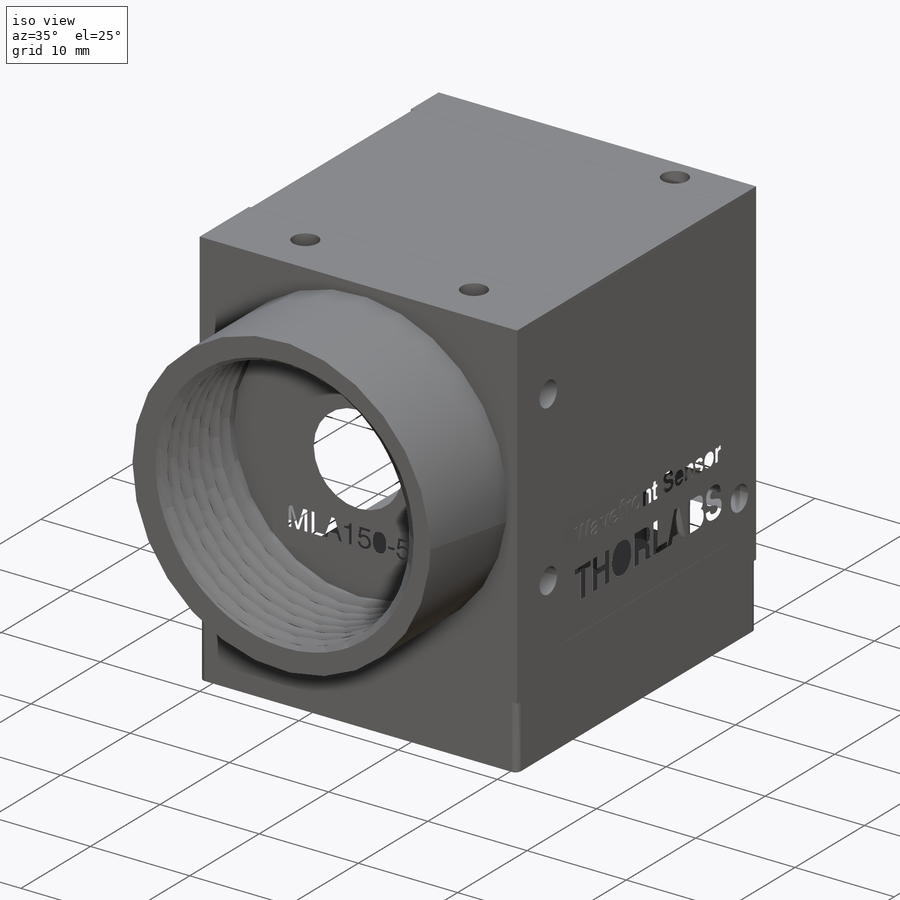
[diagram: iso view]
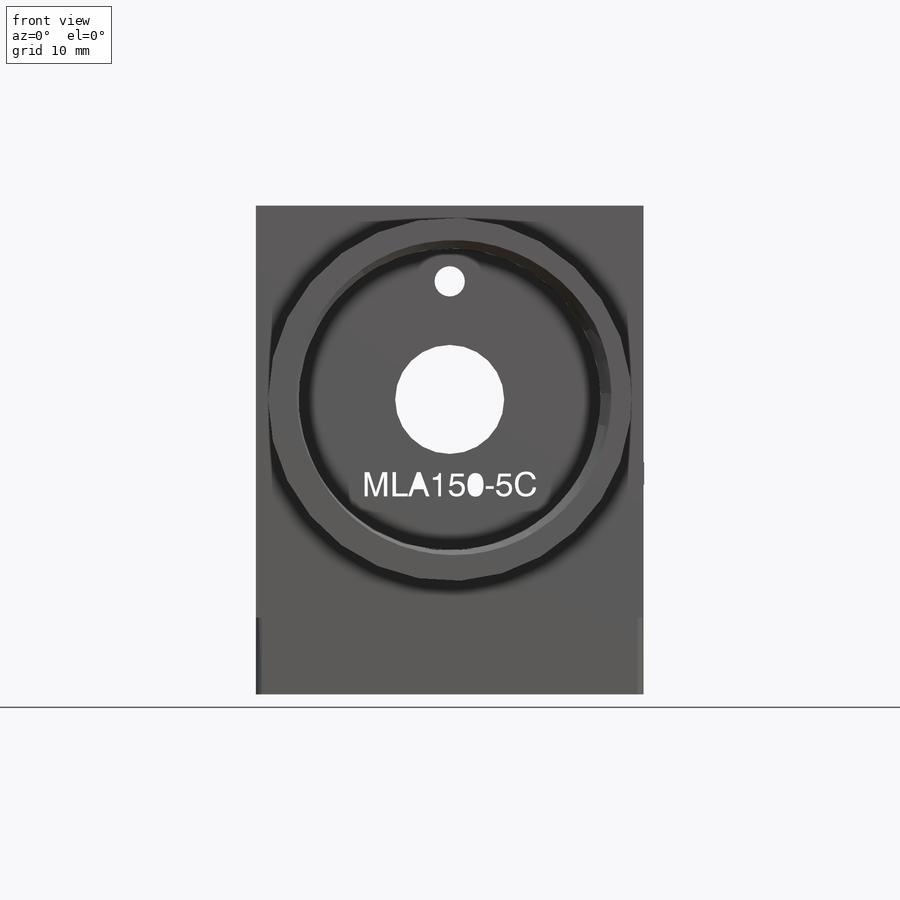
[diagram: front view]
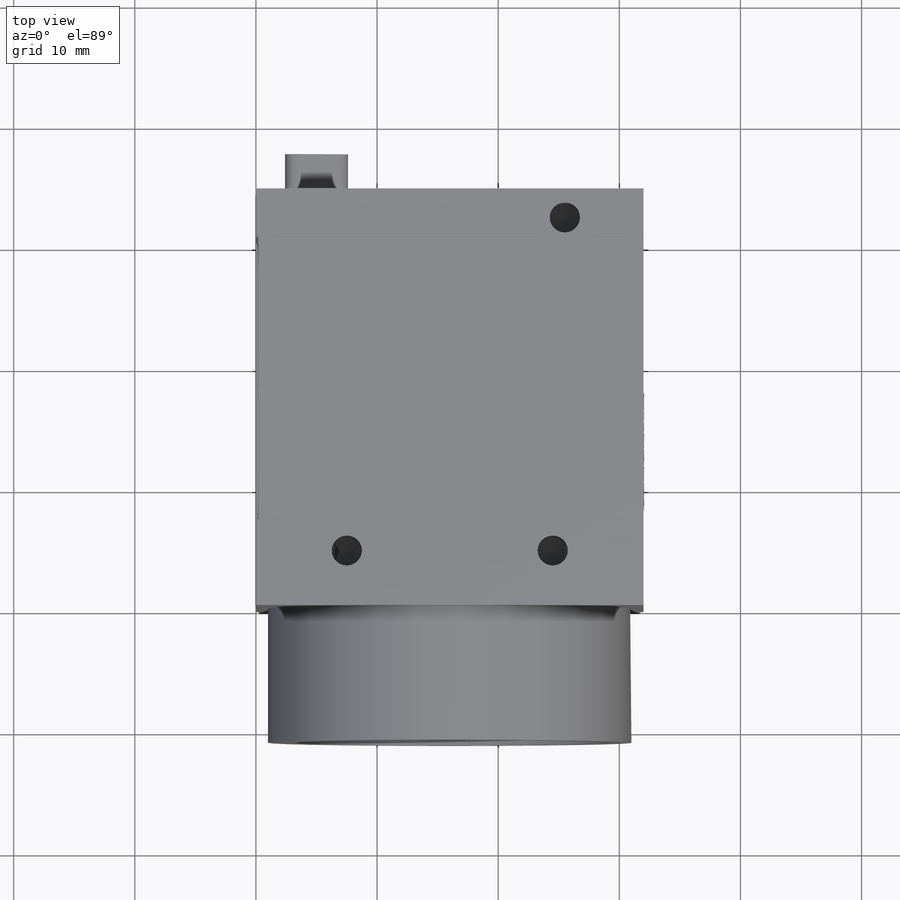
[diagram: top view]
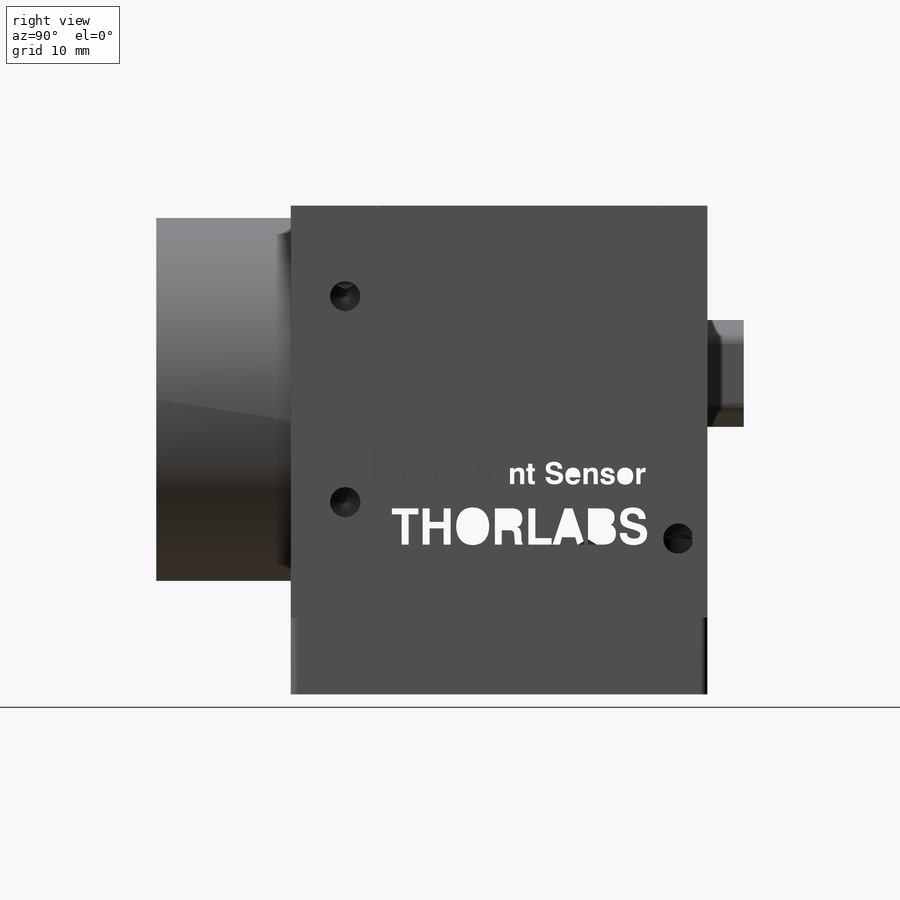
[diagram: right view]
SOLIDWORKS PART (.sldprt)
format: sldprt  version: not decoded by parser v0  size: 2,574,848 bytes
history: native  units: mm
features: sketch x39, thread x25, extrude x9, cut_extrude x9, hole x8, plane x4, fillet x4, pattern_linear x2, material x1, helix x1, sweep x1, move_body x1 + 4 further entries (+15 scaffold rows collapsed; 3 parser-record rows omitted)
feature tree (126):
  scaffold x15  (default folders/planes/origin — collapsed)
  material  "Material <nicht festgelegt>"
  plane  "Ebene vorne"
  plane  "Ebene oben"
  plane  "Ebene rechts"
  sketch  "Skizze1"  dims[D1=34.4mm D2=32.0mm]
  extrude  "Linear austragen1"  Depth=34mm
  sketch  "Skizze2"  dims[D1=30.0mm D2=18.0mm]
  extrude  "Linear austragen2"  Depth=11.1mm
  hole  "1-12 Gewindebohrung1"  Diameter=23.41626mm Depth=4mm
  sketch  "Skizze4"
  sketch  "Skizze3"  dims[hole-wizard template sketch: 46 standard entries collapsed; hole parameters kept: c15.Bohrerdurchmesser=~23.41626mm c15.Bohrungstiefe=4.0mm c15.D3=~14.816244mm c15.Spitzenwinkel=118.0deg]
  thread  "Bohrungsgewinde27"  Diameter=7.92mm  [1 undecoded]
  hole  "M3 Gewindebohrung1"  Diameter=2.5mm Depth=6.5mm
  sketch  "Skizze6"  dims[D1=6.5mm D2=9.5mm D3=17.0mm D4=27.5mm D5=15.6mm]
  sketch  "Skizze5"  dims[hole-wizard template sketch: 47 standard entries collapsed; hole parameters kept: c15.Bohrungstiefe=6.5mm c15.D3=~14.816244mm c15.Spitzenwinkel=118.0deg]
  thread  "Bohrungsgewinde2"  Diameter=4mm  [1 undecoded]
  thread  "Bohrungsgewinde3"  Diameter=4mm  [1 undecoded]
  thread  "Bohrungsgewinde4"  Diameter=4mm  [1 undecoded]
  hole  "M3 Gewindebohrung2"  Diameter=2.5mm Depth=6.5mm
  sketch  "Skizze8"  dims[D1=6.5mm D2=7.5mm D3=17.0mm D4=27.5mm D5=15.6mm]
  sketch  "Skizze7"  dims[hole-wizard template sketch: 47 standard entries collapsed; hole parameters kept: c15.Bohrungstiefe=6.5mm c15.D3=~14.816244mm c15.Spitzenwinkel=118.0deg]
  thread  "Bohrungsgewinde5"  Diameter=4mm  [1 undecoded]
  thread  "Bohrungsgewinde6"  Diameter=4mm  [1 undecoded]
  thread  "Bohrungsgewinde7"  Diameter=4mm  [1 undecoded]
  hole  "M3 Gewindebohrung3"  Diameter=2.5mm Depth=6.5mm
  sketch  "Skizze10"  dims[D1=6.5mm D2=9.5mm D3=17.0mm D4=27.5mm D5=15.6mm]
  sketch  "Skizze9"  dims[hole-wizard template sketch: 47 standard entries collapsed; hole parameters kept: c15.Bohrungstiefe=6.5mm c15.D3=~14.816244mm c15.Spitzenwinkel=118.0deg]
  thread  "Bohrungsgewinde8"  Diameter=4mm  [1 undecoded]
  thread  "Bohrungsgewinde9"  Diameter=4mm  [1 undecoded]
  thread  "Bohrungsgewinde10"  Diameter=4mm  [1 undecoded]
  hole  "M3 Gewindebohrung4"  Diameter=2.5mm Depth=6.5mm
  sketch  "Skizze12"  dims[D1=19.0mm D2=6.5mm D3=7.5mm D4=17.0mm D5=27.5mm D6=15.6mm D7=2.4mm]
  sketch  "Skizze11"  dims[hole-wizard template sketch: 47 standard entries collapsed; hole parameters kept: c15.Bohrungstiefe=6.5mm c15.D3=~14.816244mm c15.Spitzenwinkel=118.0deg]
  thread  "Bohrungsgewinde11"  Diameter=4mm  [1 undecoded]
  thread  "Bohrungsgewinde12"  Diameter=4mm  [1 undecoded]
  thread  "Bohrungsgewinde13"  Diameter=4mm  [1 undecoded]
  thread  "Bohrungsgewinde14"  Diameter=4mm  [1 undecoded]
  hole  "M2 Gewindebohrung1"  Diameter=1.6mm Depth=6mm
  sketch  "Skizze14"  dims[c1.D1=12.0mm c1.D2=22.0mm c1.D3=29.0mm c1.D4=13.6mm c1.D5=10.0mm c2.D4=2.9mm]
  sketch  "Skizze13"  dims[hole-wizard template sketch: 50 standard entries collapsed; hole parameters above]
  thread  "Bohrungsgewinde15"  Diameter=4mm  [1 undecoded]
  thread  "Bohrungsgewinde16"  Diameter=4mm  [1 undecoded]
  thread  "Bohrungsgewinde17"  Diameter=4mm  [1 undecoded]
  thread  "Bohrungsgewinde18"  Diameter=4mm  [1 undecoded]
  thread  "Bohrungsgewinde19"  Diameter=4mm  [1 undecoded]
  thread  "Bohrungsgewinde20"  Diameter=4mm  [1 undecoded]
  sketch  "Skizze15"  dims[D1=23.3mm D2=31.0mm D3=4.0mm]
  sketch  "Skizze16"  dims[D1=23.3mm]
  sketch  "Skizze17"  dims[D1=31.0mm]
  hole  "M3 Gewindebohrung5"  Diameter=2.5mm Depth=6.5mm
  sketch  "Skizze19"  dims[D1=14.4mm D2=17.95mm]
  sketch  "Skizze18"  dims[hole-wizard template sketch: 47 standard entries collapsed; hole parameters kept: c15.Bohrungstiefe=6.5mm c15.D3=~14.816244mm c15.Spitzenwinkel=118.0deg]
  thread  "Bohrungsgewinde24"  Diameter=4mm  [1 undecoded]
  sketch  "Skizze20"  dims[D1=3.3mm D2=7.75mm D3=9.1mm]
  cut_extrude  "Schnitt-Linear austragen1"  Depth=2mm
  sketch  "Skizze21"  dims[D1=3.2mm]
  extrude  "Linear austragen3"  Depth=2mm
  sketch  "Skizze22"  dims[D1=10.1mm D2=6.0mm D3=13.85mm D4=5.0mm]
  sketch  "Skizze23"  dims[D1=8.3mm D2=5.1mm D3=4.15mm D4=16.0mm]
  cut_extrude  "Schnitt-Linear austragen2"  Depth=3mm
  fillet  "Verrundung1"  Radius=0.5mm
  sketch  "Skizze24"  dims[c1.D1=3.3mm c1.D2=3.3mm c1.D3=3.0mm c1.D4=3.0mm c1.D5=0.7mm c1.D6=0.7mm c1.D7=2.0mm c1.D8=1.2mm c1.D9=1.2mm c1.D10=2.0mm c2.D1=3.0mm c2.D5=0.2mm c2.D6=1.0mm c2.D7=5.0mm]
  sketch  "Skizze25"  dims[c1.D1=4.5mm c1.D2=3.0mm c1.D3=3.0mm c1.D4=4.5mm c1.D5=2.4mm c1.D6=2.4mm c2.D1=3.0mm c2.D5=0.2mm c2.D6=1.0mm c2.D7=5.0mm]
  fillet  "Verrundung2"  Radius=1mm
  fillet  "Verrundung3"  Radius=1mm
  cut_extrude  "Schnitt-Linear austragen4"  Depth=0.5mm
  sketch  "Skizze26"  dims[D1=0.5mm D2=2.6mm D3=2.0mm]
  extrude  "Linear austragen4"  Depth=2.5mm
  pattern_linear  "Lineares Muster1"  Count1=5 Count2=1 Spacing1=1.2mm Spacing2=10mm
  sketch  "Skizze27"  dims[D1=0.5mm D2=3.0mm D3=2.0mm]
  extrude  "Linear austragen5"  Depth=2.5mm
  pattern_linear  "Lineares Muster2"  Count1=4 Count2=1 Spacing1=1.2mm Spacing2=10mm
  fillet  "Verrundung4"  Radius=0.5mm
  hole  "M2 Gewindebohrung2"  Diameter=1.6mm Depth=6mm
  sketch  "Skizze29"  dims[c1.D1=5.0mm c1.D2=10.1mm c2.D1=14.0mm]
  sketch  "Skizze28"  dims[hole-wizard template sketch: 50 standard entries collapsed; hole parameters above]
  thread  "Bohrungsgewinde25"  Diameter=4mm  [1 undecoded]
  thread  "Bohrungsgewinde26"  Diameter=4mm  [1 undecoded]
  cut_extrude  "Schnitt-Linear austragen5"  Depth=0.2mm
  cut_extrude  "Schnitt-Linear austragen6"  Depth=0.2mm
  cut_extrude  "Schnitt-Linear austragen7"  Depth=0.2mm
  sketch  "Skizze30"  dims[D1=0.01mm D2=0.01mm D3=3.01mm]
  extrude  "Linear austragen6"  Depth=0.2mm
  sketch  "Skizze31"  dims[D1=0.01mm D2=0.01mm D3=0.01mm D4=0.01mm]
  extrude  "Linear austragen8"  Depth=0.2mm
  sketch  "Skizze33"  dims[D1=25.0mm]
  cut_extrude  "Schnitt-Linear austragen8"  [1 undecoded]
  sketch  "Skizze35"
  sketch  "Skizze37"
  helix  "Spirale/Helix1"  Pitch=15mm
  plane  "Ebene1"  Offset=17mm
  sketch  "Skizze38"  dims[D1=1.5mm D2=1.0mm]
  sweep  "Schnitt-Austragung1"
  sketch  "Skizze39"  dims[c1.D1=7.0mm c1.D2=5.0mm c2.D1=3.0mm c2.D2=5.0mm]
  extrude  "Linear austragen12"  Depth=0.05mm
  sketch  "Skizze40"  dims[D1=3.0mm D2=5.0mm]
  extrude  "Linear austragen13"  Depth=0.05mm
  "M0092-0435-0b   Basisplatte UEYE Camera"
  thread  "Bohrungsgewinde1-M0092-0435-0b   Basisplatte UEYE Camera"  Diameter=4mm  [1 undecoded]
  thread  "Bohrungsgewinde2-M0092-0435-0b   Basisplatte UEYE Camera"  Diameter=4.1656mm  [1 undecoded]
  move_body  "Körper-Verschieben/Kopieren4"
  "Deckungsgleich2"
  "Konzentrisch2"
  "Konzentrisch3"
  parser-record x3  (decoder bookkeeping rows leaked as tree rows — omitted from the tree; the rows remain in map.json)
  sketch  "Skizze41"  dims[D1=9.0mm D2=2.5mm D3=9.75mm]
  cut_extrude  "Schnitt-Linear austragen9"  Depth=1mm
  sketch  "Skizze42"  dims[D1=8.0mm]
  cut_extrude  "Linear austragen14"  Depth=0.1mm
decode coverage: 93 of 99 modeling features carry decoded parameters; 4 rows unclassified (native names shown)
note: ~ marks probable driven/reference dimensions
note: 26 parameter values undecoded
summary: Diameter pulled from absorbed wizard sketch
note: suppression state not decoded; provenance and decode notes live in map.json
